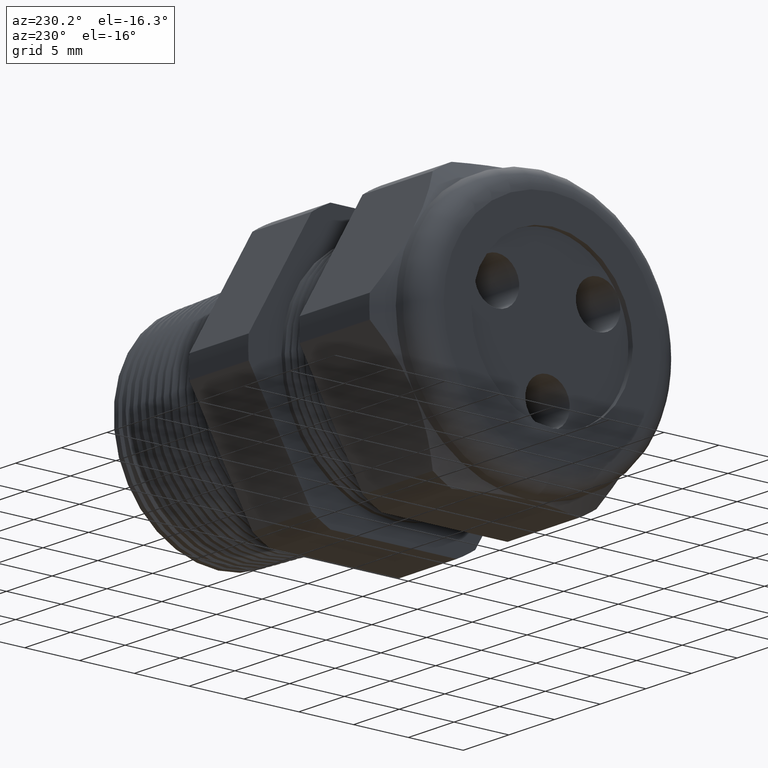
[diagram: clean part render]
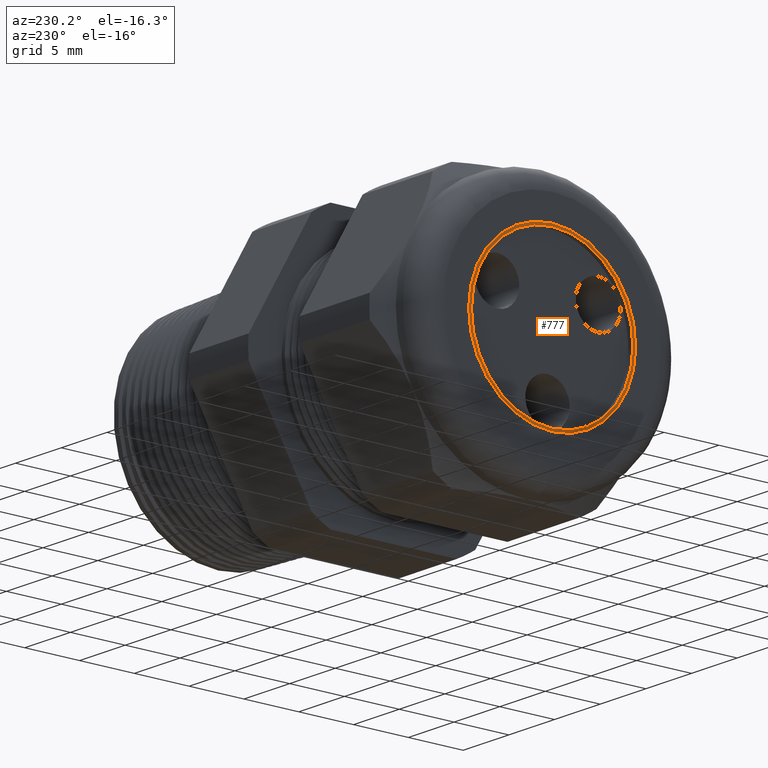
[diagram: same view with one face highlighted and labeled with its STEP entity id]
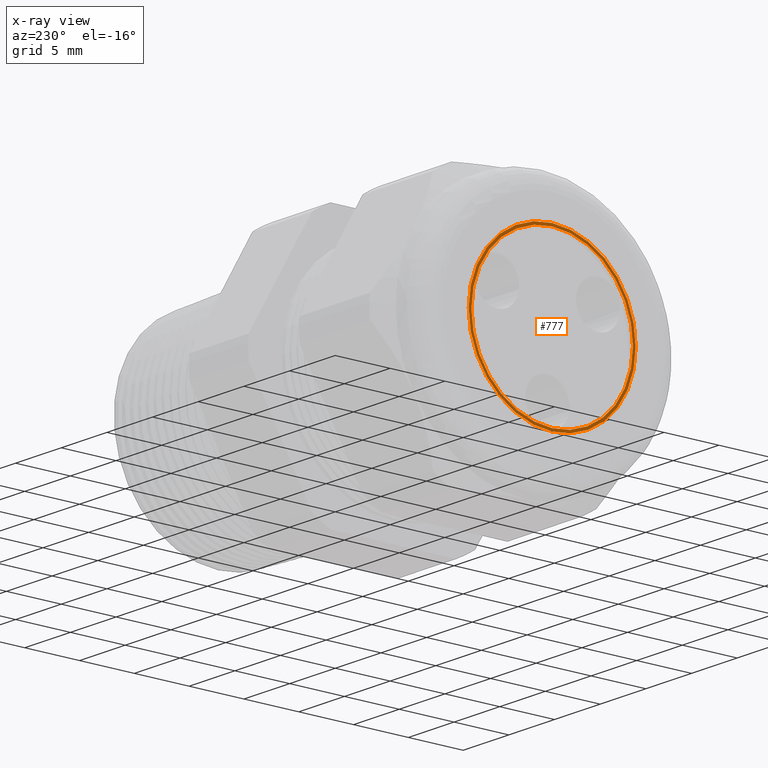
[diagram: x-ray of the same camera — body ghosted, the highlighted face saturated]
A machine part, auxiliary view. The second image highlights one B-rep face of the part: STEP entity #777.
The next image is the same camera in x-ray: the body ghosted, the highlighted face saturated — about 0% of this face is hidden behind the body in this view.
In plain terms, the highlighted planar face has unit normal (-1, 0, 0).
Its self-contained STEP definition (entity closure, byte-faithful):
#777 = ADVANCED_FACE ( 'NONE', ( #3272, #3271 ), #3270, .T. ) ;
#778 = EDGE_LOOP ( 'NONE', ( #843, #845 ) ) ;
#786 = EDGE_CURVE ( 'NONE', #807, #806, #3317, .T. ) ;
#805 = EDGE_CURVE ( 'NONE', #806, #807, #3343, .T. ) ;
#806 = VERTEX_POINT ( 'NONE', #3339 ) ;
#807 = VERTEX_POINT ( 'NONE', #3338 ) ;
#811 = VERTEX_POINT ( 'NONE', #3330 ) ;
#821 = EDGE_CURVE ( 'NONE', #811, #823, #3377, .T. ) ;
#823 = VERTEX_POINT ( 'NONE', #3371 ) ;
#843 = ORIENTED_EDGE ( 'NONE', *, *, #844, .F. ) ;
#844 = EDGE_CURVE ( 'NONE', #823, #811, #3395, .T. ) ;
#845 = ORIENTED_EDGE ( 'NONE', *, *, #821, .F. ) ;
#846 = EDGE_LOOP ( 'NONE', ( #847, #848 ) ) ;
#847 = ORIENTED_EDGE ( 'NONE', *, *, #805, .T. ) ;
#848 = ORIENTED_EDGE ( 'NONE', *, *, #786, .T. ) ;
#3266 = DIRECTION ( 'NONE',  ( 0.0000000000000000000, 0.0000000000000000000, 1.000000000000000000 ) ) ;
#3267 = DIRECTION ( 'NONE',  ( -1.000000000000000000, 0.0000000000000000000, 0.0000000000000000000 ) ) ;
#3268 = CARTESIAN_POINT ( 'NONE',  ( -1.249999999999999800, 0.0000000000000000000, 0.0000000000000000000 ) ) ;
#3269 = AXIS2_PLACEMENT_3D ( 'NONE', #3268, #3267, #3266 ) ;
#3270 = PLANE ( 'NONE',  #3269 ) ;
#3271 = FACE_OUTER_BOUND ( 'NONE', #846, .T. ) ;
#3272 = FACE_BOUND ( 'NONE', #778, .T. ) ;
#3313 = DIRECTION ( 'NONE',  ( 0.0000000000000000000, 0.0000000000000000000, 1.000000000000000000 ) ) ;
#3314 = DIRECTION ( 'NONE',  ( -1.000000000000000000, 0.0000000000000000000, 0.0000000000000000000 ) ) ;
#3315 = CARTESIAN_POINT ( 'NONE',  ( -1.249999999999999800, 0.0000000000000000000, 0.0000000000000000000 ) ) ;
#3316 = AXIS2_PLACEMENT_3D ( 'NONE', #3315, #3314, #3313 ) ;
#3317 = CIRCLE ( 'NONE', #3316, 0.2999999999999999900 ) ;
#3330 = CARTESIAN_POINT ( 'NONE',  ( -1.249999999999999800, 3.551475717527324400E-017, -0.2900000000000000400 ) ) ;
#3338 = CARTESIAN_POINT ( 'NONE',  ( -1.249999999999999800, 3.673940397442059500E-017, -0.2999999999999999900 ) ) ;
#3339 = CARTESIAN_POINT ( 'NONE',  ( -1.249999999999999800, 0.0000000000000000000, 0.2999999999999999900 ) ) ;
#3340 = DIRECTION ( 'NONE',  ( 0.0000000000000000000, 0.0000000000000000000, 1.000000000000000000 ) ) ;
#3341 = DIRECTION ( 'NONE',  ( -1.000000000000000000, 0.0000000000000000000, 0.0000000000000000000 ) ) ;
#3342 = AXIS2_PLACEMENT_3D ( 'NONE', #3349, #3341, #3340 ) ;
#3343 = CIRCLE ( 'NONE', #3342, 0.2999999999999999900 ) ;
#3349 = CARTESIAN_POINT ( 'NONE',  ( -1.249999999999999800, 0.0000000000000000000, 0.0000000000000000000 ) ) ;
#3371 = CARTESIAN_POINT ( 'NONE',  ( -1.249999999999999800, 0.0000000000000000000, 0.2900000000000000400 ) ) ;
#3373 = DIRECTION ( 'NONE',  ( 0.0000000000000000000, 0.0000000000000000000, 1.000000000000000000 ) ) ;
#3374 = DIRECTION ( 'NONE',  ( -1.000000000000000000, 0.0000000000000000000, 0.0000000000000000000 ) ) ;
#3375 = CARTESIAN_POINT ( 'NONE',  ( -1.249999999999999800, 0.0000000000000000000, 0.0000000000000000000 ) ) ;
#3376 = AXIS2_PLACEMENT_3D ( 'NONE', #3375, #3374, #3373 ) ;
#3377 = CIRCLE ( 'NONE', #3376, 0.2900000000000000400 ) ;
#3393 = CARTESIAN_POINT ( 'NONE',  ( -1.249999999999999800, 0.0000000000000000000, 0.0000000000000000000 ) ) ;
#3394 = AXIS2_PLACEMENT_3D ( 'NONE', #3393, #3454, #3453 ) ;
#3395 = CIRCLE ( 'NONE', #3394, 0.2900000000000000400 ) ;
#3453 = DIRECTION ( 'NONE',  ( 0.0000000000000000000, 0.0000000000000000000, 1.000000000000000000 ) ) ;
#3454 = DIRECTION ( 'NONE',  ( -1.000000000000000000, 0.0000000000000000000, 0.0000000000000000000 ) ) ;